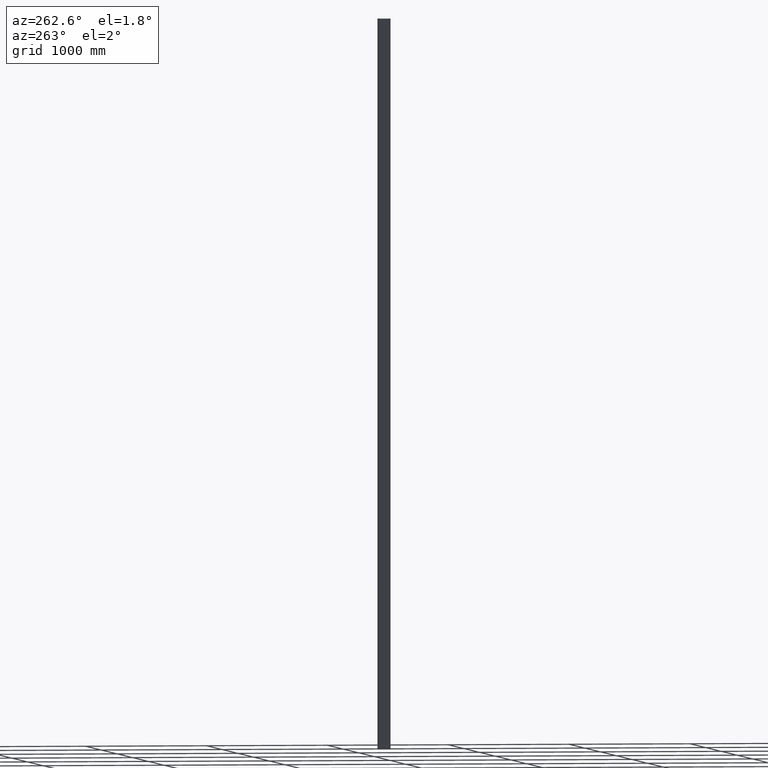
[diagram: clean part render]
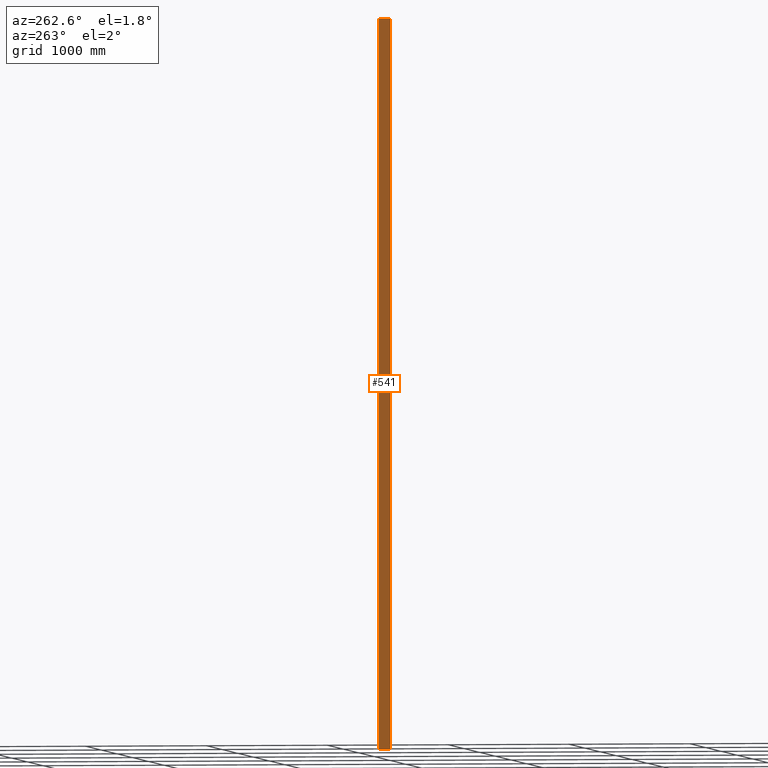
[diagram: same view with one face highlighted and labeled with its STEP entity id]
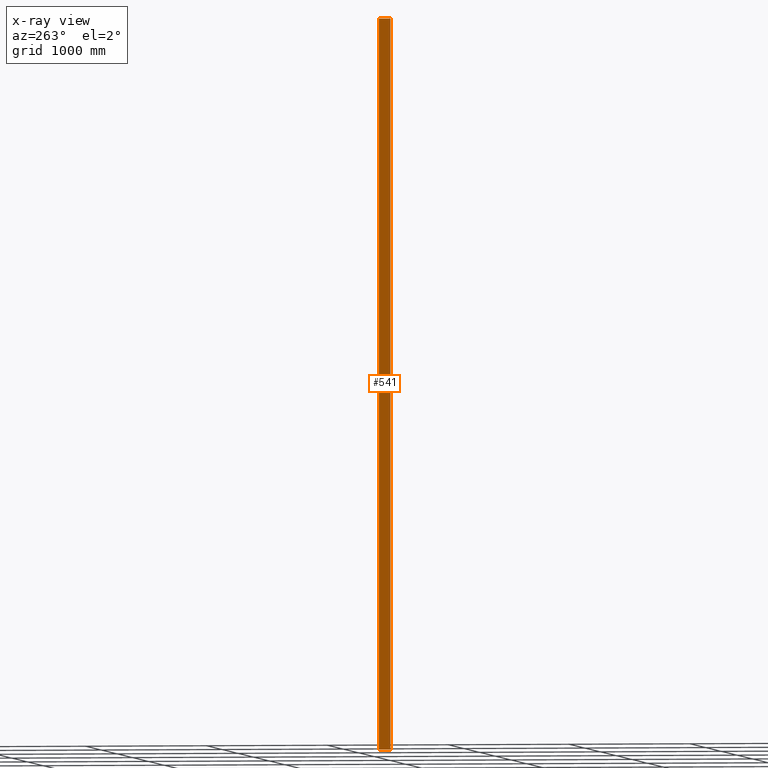
[diagram: x-ray of the same camera — body ghosted, the highlighted face saturated]
A machine part, auxiliary view. The second image highlights one B-rep face of the part: STEP entity #541.
The next image is the same camera in x-ray: the body ghosted, the highlighted face saturated — about 0% of this face is hidden behind the body in this view.
In plain terms, the highlighted planar face has unit normal (1, 0, -0).
Its self-contained STEP definition (entity closure, byte-faithful):
#541 = ADVANCED_FACE ( 'NONE', ( #5267 ), #4818, .F. ) ;
#633 = CARTESIAN_POINT ( 'NONE',  ( -20.37499999999997200, 0.2499999999999998900, 3000.000000000000000 ) ) ;
#1066 = VERTEX_POINT ( 'NONE', #633 ) ;
#1212 = LINE ( 'NONE', #12627, #10727 ) ;
#1219 = AXIS2_PLACEMENT_3D ( 'NONE', #11705, #3750, #4637 ) ;
#1384 = CARTESIAN_POINT ( 'NONE',  ( -20.37499999999997200, 0.2499999999999998900, -3000.000000000000000 ) ) ;
#1712 = CARTESIAN_POINT ( 'NONE',  ( -20.37500000000000700, 96.25000000149994200, 3000.000000000000000 ) ) ;
#2107 = CARTESIAN_POINT ( 'NONE',  ( -20.37499999999997200, 0.2499999999999998900, 3000.000000000000000 ) ) ;
#2251 = ORIENTED_EDGE ( 'NONE', *, *, #4858, .T. ) ;
#2298 = LINE ( 'NONE', #11972, #7840 ) ;
#3361 = LINE ( 'NONE', #2107, #12204 ) ;
#3737 = VERTEX_POINT ( 'NONE', #1384 ) ;
#3750 = DIRECTION ( 'NONE',  ( 1.000000000000000000, 3.614007241561881100E-016, -0.0000000000000000000 ) ) ;
#4517 = ORIENTED_EDGE ( 'NONE', *, *, #7627, .T. ) ;
#4637 = DIRECTION ( 'NONE',  ( -3.614007241561881100E-016, 1.000000000000000000, 0.0000000000000000000 ) ) ;
#4818 = PLANE ( 'NONE',  #1219 ) ;
#4858 = EDGE_CURVE ( 'NONE', #7546, #11859, #1212, .T. ) ;
#5267 = FACE_OUTER_BOUND ( 'NONE', #7737, .T. ) ;
#6074 = VECTOR ( 'NONE', #7479, 1000.000000000000000 ) ;
#6862 = LINE ( 'NONE', #12524, #6074 ) ;
#7087 = DIRECTION ( 'NONE',  ( -0.0000000000000000000, -0.0000000000000000000, -1.000000000000000000 ) ) ;
#7479 = DIRECTION ( 'NONE',  ( 3.614007241561881600E-016, -1.000000000000000000, 0.0000000000000000000 ) ) ;
#7546 = VERTEX_POINT ( 'NONE', #1712 ) ;
#7627 = EDGE_CURVE ( 'NONE', #11859, #3737, #2298, .T. ) ;
#7737 = EDGE_LOOP ( 'NONE', ( #4517, #10054, #9114, #2251 ) ) ;
#7840 = VECTOR ( 'NONE', #8025, 1000.000000000000000 ) ;
#8025 = DIRECTION ( 'NONE',  ( 3.614007241561881600E-016, -1.000000000000000000, 0.0000000000000000000 ) ) ;
#8133 = CARTESIAN_POINT ( 'NONE',  ( -20.37500000000000700, 96.25000000149994200, -3000.000000000000000 ) ) ;
#9114 = ORIENTED_EDGE ( 'NONE', *, *, #12588, .F. ) ;
#9452 = DIRECTION ( 'NONE',  ( -0.0000000000000000000, -0.0000000000000000000, -1.000000000000000000 ) ) ;
#10054 = ORIENTED_EDGE ( 'NONE', *, *, #12451, .F. ) ;
#10727 = VECTOR ( 'NONE', #9452, 1000.000000000000000 ) ;
#11705 = CARTESIAN_POINT ( 'NONE',  ( -20.37499999999997200, -7.363539754682323100E-015, 3000.000000000000000 ) ) ;
#11859 = VERTEX_POINT ( 'NONE', #8133 ) ;
#11972 = CARTESIAN_POINT ( 'NONE',  ( -20.37499999999997200, -7.363539754682323100E-015, -3000.000000000000000 ) ) ;
#12204 = VECTOR ( 'NONE', #7087, 1000.000000000000000 ) ;
#12451 = EDGE_CURVE ( 'NONE', #1066, #3737, #3361, .T. ) ;
#12524 = CARTESIAN_POINT ( 'NONE',  ( -20.37499999999997200, -7.363539754682323100E-015, 3000.000000000000000 ) ) ;
#12588 = EDGE_CURVE ( 'NONE', #7546, #1066, #6862, .T. ) ;
#12627 = CARTESIAN_POINT ( 'NONE',  ( -20.37500000000000700, 96.25000000149994200, 3000.000000000000000 ) ) ;